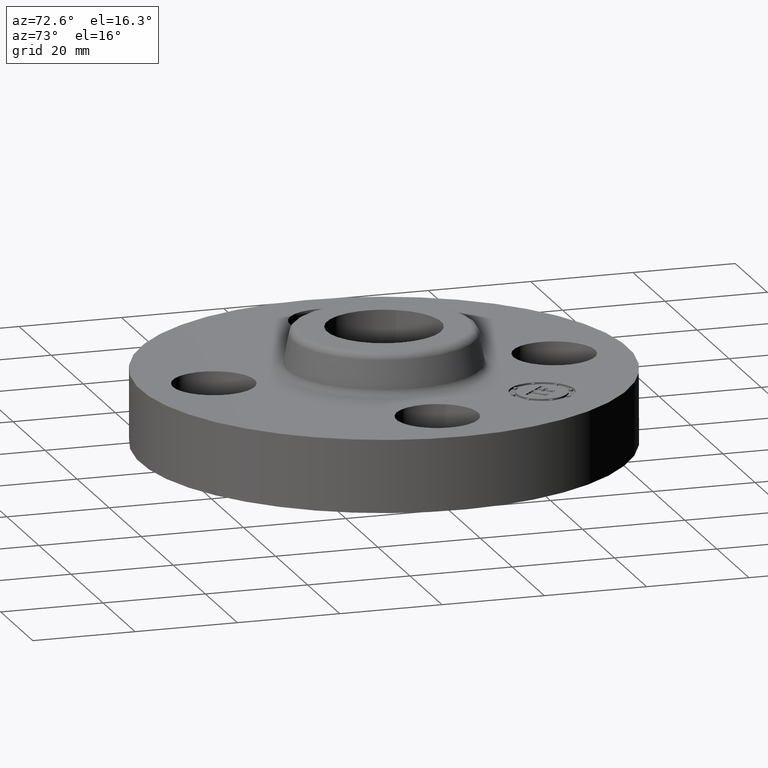
[diagram: clean part render]
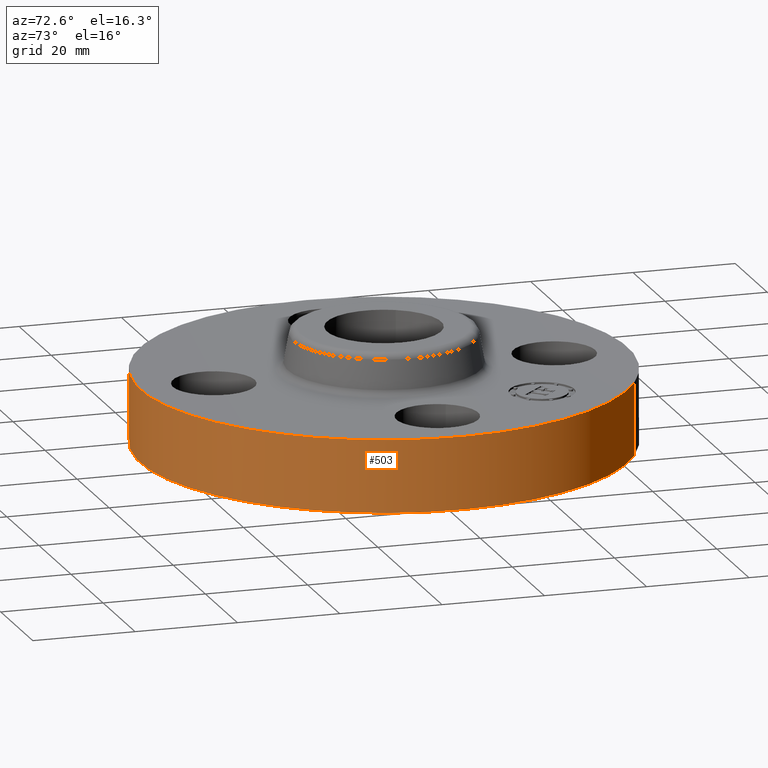
[diagram: same view with one face highlighted and labeled with its STEP entity id]
A machine part, auxiliary view. The second image highlights one B-rep face of the part: STEP entity #503.
In plain terms, the highlighted cylindrical surface (partial cylindrical patch) has radius 47.625 mm, axis along (0, 0, -1).
Its self-contained STEP definition (entity closure, byte-faithful):
#284=AXIS2_PLACEMENT_3D('Circle Axis2P3D',#282,#283,$) ;
#490=AXIS2_PLACEMENT_3D('Cylinder Axis2P3D',#487,#488,#489) ;
#494=AXIS2_PLACEMENT_3D('Circle Axis2P3D',#492,#493,$) ;
#277=CARTESIAN_POINT('Vertex',(-0.898922884866,-1.64546730358,0.)) ;
#279=CARTESIAN_POINT('Vertex',(0.898922884866,1.64546730355,0.)) ;
#282=CARTESIAN_POINT('Axis2P3D Location',(8.39223703654E-016,-1.62475807087E-011,0.)) ;
#442=CARTESIAN_POINT('Line Origine',(-0.898922884888,-1.64546730355,0.279999999992)) ;
#446=CARTESIAN_POINT('Vertex',(-0.898922884888,-1.64546730355,0.560000000018)) ;
#465=CARTESIAN_POINT('Vertex',(0.898922884866,1.64546730357,0.560000000002)) ;
#468=CARTESIAN_POINT('Line Origine',(0.898922884888,1.64546730355,0.279999999992)) ;
#487=CARTESIAN_POINT('Axis2P3D Location',(0.,0.,0.440000000002)) ;
#492=CARTESIAN_POINT('Axis2P3D Location',(0.,0.,0.560000000018)) ;
#283=DIRECTION('Axis2P3D Direction',(0.,0.,-0.0393700787402)) ;
#443=DIRECTION('Vector Direction',(0.,0.,-0.0393700787402)) ;
#469=DIRECTION('Vector Direction',(0.,0.,-0.0393700787402)) ;
#488=DIRECTION('Axis2P3D Direction',(0.,0.,-0.0393700787402)) ;
#489=DIRECTION('Axis2P3D XDirection',(0.0188750212049,0.0345504945626,0.)) ;
#493=DIRECTION('Axis2P3D Direction',(0.,0.,-0.0393700787402)) ;
#444=VECTOR('Line Direction',#443,0.0393700787402) ;
#470=VECTOR('Line Direction',#469,0.0393700787402) ;
#498=ORIENTED_EDGE('',*,*,#286,.F.) ;
#499=ORIENTED_EDGE('',*,*,#472,.T.) ;
#500=ORIENTED_EDGE('',*,*,#496,.T.) ;
#501=ORIENTED_EDGE('',*,*,#448,.F.) ;
#503=ADVANCED_FACE('PartBody',(#502),#491,.T.) ;
#285=CIRCLE('generated circle',#284,1.87500000001) ;
#495=CIRCLE('generated circle',#494,1.87500000001) ;
#491=CYLINDRICAL_SURFACE('generated cylinder',#490,1.87500000001) ;
#286=EDGE_CURVE('',#280,#278,#285,.T.) ;
#448=EDGE_CURVE('',#278,#447,#445,.F.) ;
#472=EDGE_CURVE('',#280,#466,#471,.F.) ;
#496=EDGE_CURVE('',#466,#447,#495,.T.) ;
#497=EDGE_LOOP('',(#498,#499,#500,#501)) ;
#502=FACE_OUTER_BOUND('',#497,.T.) ;
#445=LINE('Line',#442,#444) ;
#471=LINE('Line',#468,#470) ;
#278=VERTEX_POINT('',#277) ;
#280=VERTEX_POINT('',#279) ;
#447=VERTEX_POINT('',#446) ;
#466=VERTEX_POINT('',#465) ;